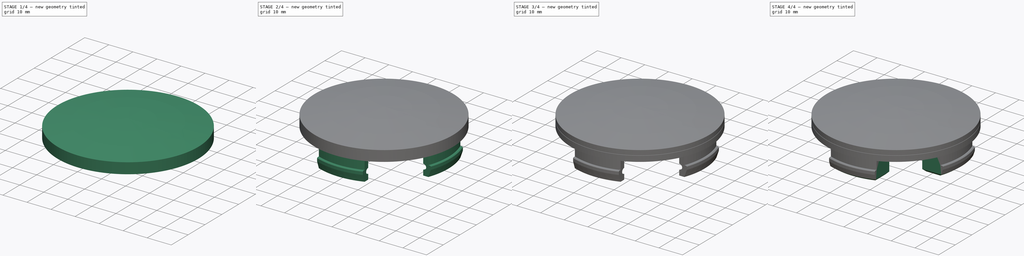
[diagram: build sequence overview — one tinted view per stage of 4, left to right]
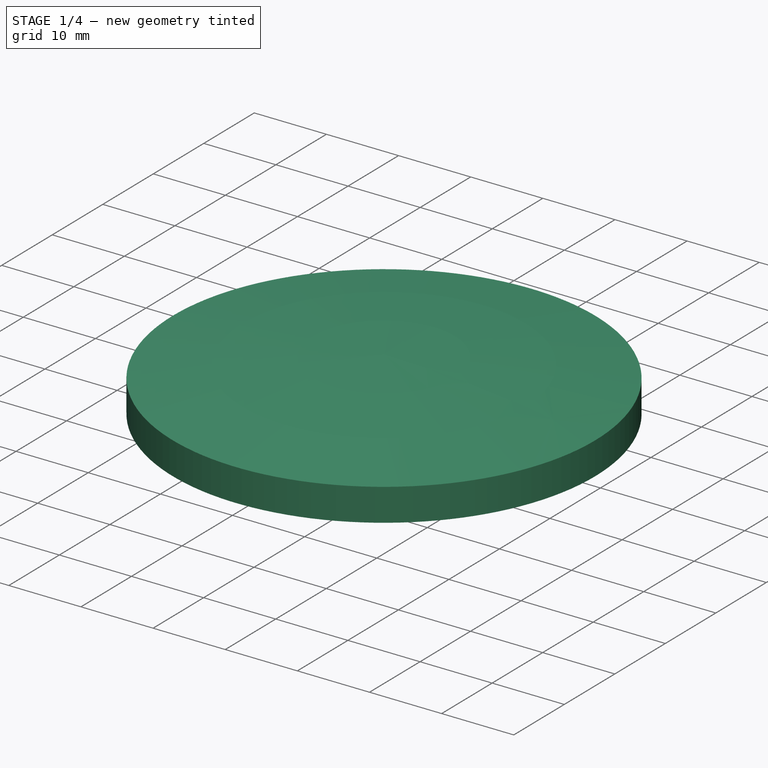
[diagram: stage 1 of 4 — iso view after this stage's code; geometry added in this stage tinted green]
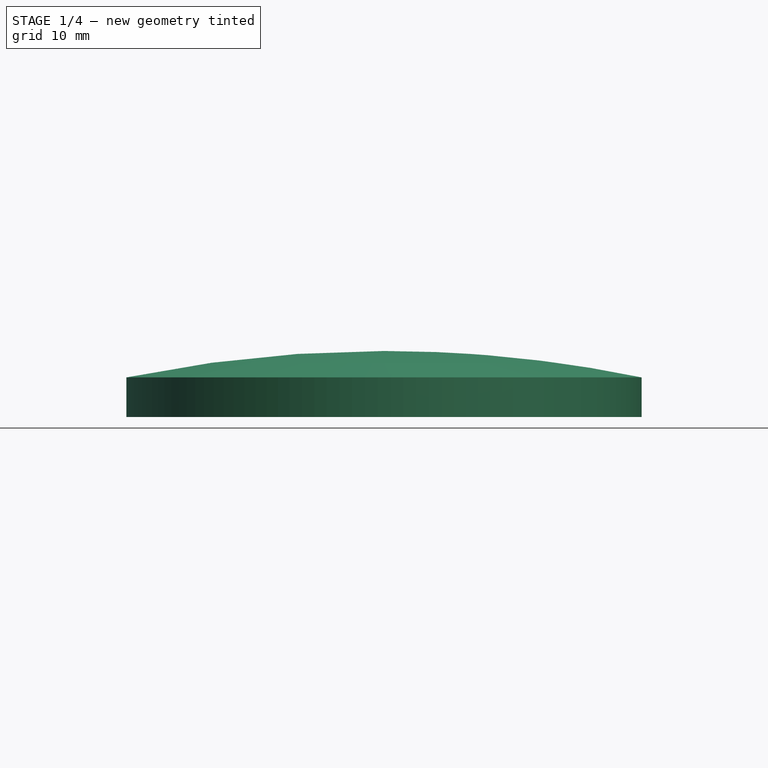
[diagram: stage 1 of 4 — front view after this stage's code; geometry added in this stage tinted green]
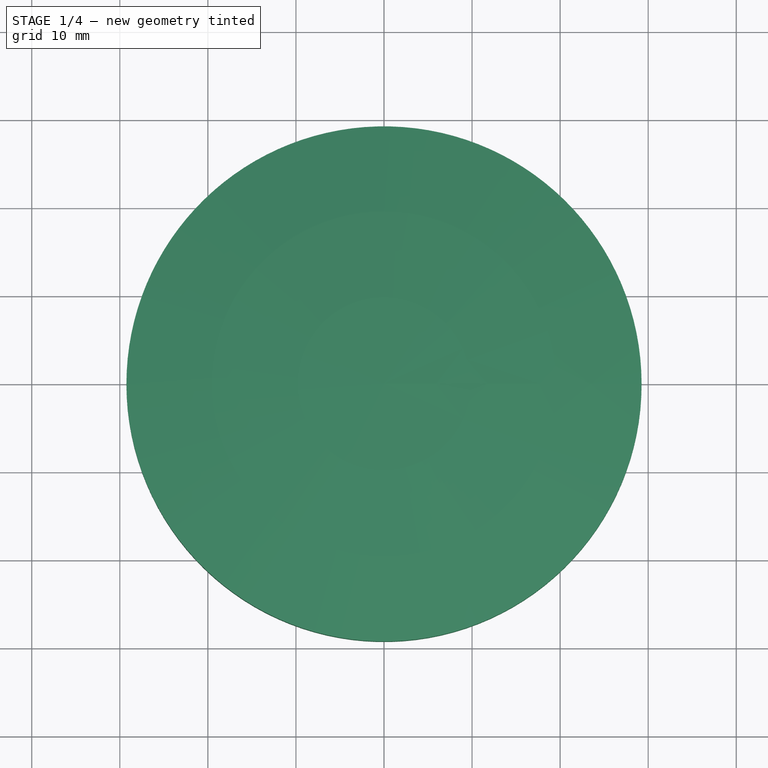
[diagram: stage 1 of 4 — top view after this stage's code; geometry added in this stage tinted green]
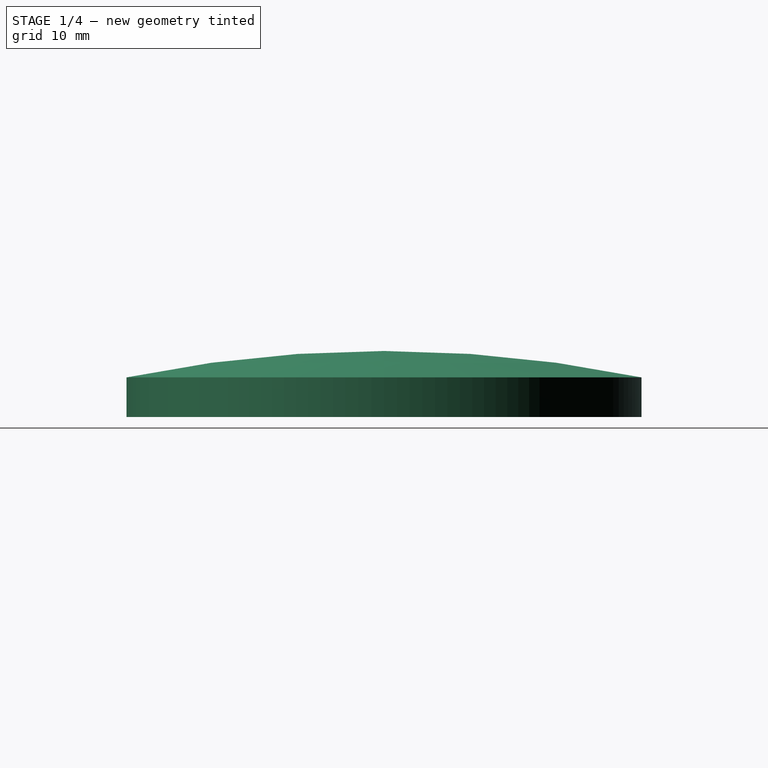
[diagram: stage 1 of 4 — right view after this stage's code; geometry added in this stage tinted green]
FCSTD DOCUMENT  (FreeCAD 1.2R44643 (Git))
Label: CarCoverThing
License: All rights reserved
LicenseURL: https://en.wikipedia.org/wiki/All_rights_reserved
objects: Sketcher::SketchObject×9, PartDesign::Pad×3, PartDesign::Pocket×3, PartDesign::Groove×2, PartDesign::PolarPattern×2, PartDesign::Chamfer×2, App::Point×1, PartDesign::Revolution×1, PartDesign::Mirrored×1, PartDesign::MultiTransform×1, PartDesign::Body×1
note: 60 computed .brp shape members not serialized (recipe doc carries the construction recipe); baked Part::Feature solids carry a one-line shape summary decoded from their .brp

FEATURE [App::Point] Origin001
  Role = Origin
FEATURE [Sketcher::SketchObject] Sketch
  ArcFitTolerance = 1e-06
  AttachmentSupport = -> [Origin]
  ExternalTypes = [0]
  FullyConstrained = true
  MakeInternals = false
  MapMode = 5
  sketch-geometry (1):
    g0: Circle CenterX=0 CenterY=0 CenterZ=0 NormalX=0 NormalY=0 NormalZ=1 AngleXU=0 Radius=29.25
  constraints (2):
    c: Diameter(g0) = 58.5
    c: Coincident(g0,g-1)
FEATURE [PartDesign::Pad] Pad
  Direction = (0,0,1)
  Length = 7.5
  Length2 = 10
  Profile = -> Sketch
  ReferenceAxis = -> Sketch [N_Axis]
  Refine = true
  SideType = 0
  Suppressed = false
  Type = 0
  Type2 = 0
FEATURE [Sketcher::SketchObject] Sketch001
  ArcFitTolerance = 1e-06
  AttachmentSupport = -> [Origin]
  ExternalGeometry = -> [Pad]
  ExternalTypes = [0]
  FullyConstrained = true
  MakeInternals = false
  MapMode = 5
  Placement = pos=(0,0,0) rot=(1,0,0;1.5708rad)
  sketch-geometry (4):
    g0: ArcOfCircle CenterX=0 CenterY=-136.594 CenterZ=0 NormalX=0 NormalY=0 NormalZ=1 AngleXU=0 Radius=144.094 StartAngle=1.36638 EndAngle=1.5708
    g1: LineSegment StartX=8.8e-15 StartY=7.5 StartZ=0 EndX=29.25 EndY=7.5 EndZ=0
    g2: LineSegment StartX=29.25 StartY=7.5 StartZ=0 EndX=29.25 EndY=4.5 EndZ=0
    g3: Circle [constr] CenterX=29.25 CenterY=2.5 CenterZ=0 NormalX=0 NormalY=0 NormalZ=1 AngleXU=0 Radius=0.1
  constraints (11):
    c: PointOnObject(g0,g-2)
    c: DistanceY(g-1,g0) = 4.5
    c: Tangent(g0,g-8) = -1.5708
    c: PointOnObject(g0,g-3)
    c: Tangent(g0,g1) = 1.5708
    c: Coincident(g1,g2)
    c: Coincident(g2,g0)
    c: Vertical(g2)
    c: Diameter(g3) = 0.2
    c: PointOnObject(g3,g-3)
    c: DistanceY(g-7,g3) = 2.5
FEATURE [PartDesign::Groove] Groove
  Angle = 360
  Angle2 = 0
  Axis = (0,2e-16,1)
  Base = (0,0,0)
  BaseFeature = -> Pad
  Profile = -> Sketch001
  ReferenceAxis = -> Sketch001 [V_Axis]
  Refine = true
  Suppressed = false
  Type = 0
FEATURE [Sketcher::SketchObject] Sketch002
  ArcFitTolerance = 1e-06
  AttachmentSupport = -> [Groove]
  ExternalGeometry = -> [Groove]
  ExternalTypes = [0]
  FullyConstrained = true
  MakeInternals = false
  MapMode = 5
  Placement = pos=(0,0,0) rot=(1,0,0;3.14159rad)
  sketch-geometry (1):
    g0: Circle CenterX=0 CenterY=0 CenterZ=0 NormalX=0 NormalY=0 NormalZ=1 AngleXU=0 Radius=25.25
  constraints (3):
    c: Coincident(g0,g-3)
    c: Distance(g0,g-3) = 4
    c: Diameter(g-3) = 58.5
FEATURE [PartDesign::Pocket] Pocket
  BaseFeature = -> Groove
  Direction = (0,0,1)
  Length = 1.35
  Length2 = 5
  Profile = -> Sketch002
  ReferenceAxis = -> Sketch002 [N_Axis]
  Refine = true
  SideType = 0
  Suppressed = false
  Type = 0
  Type2 = 0
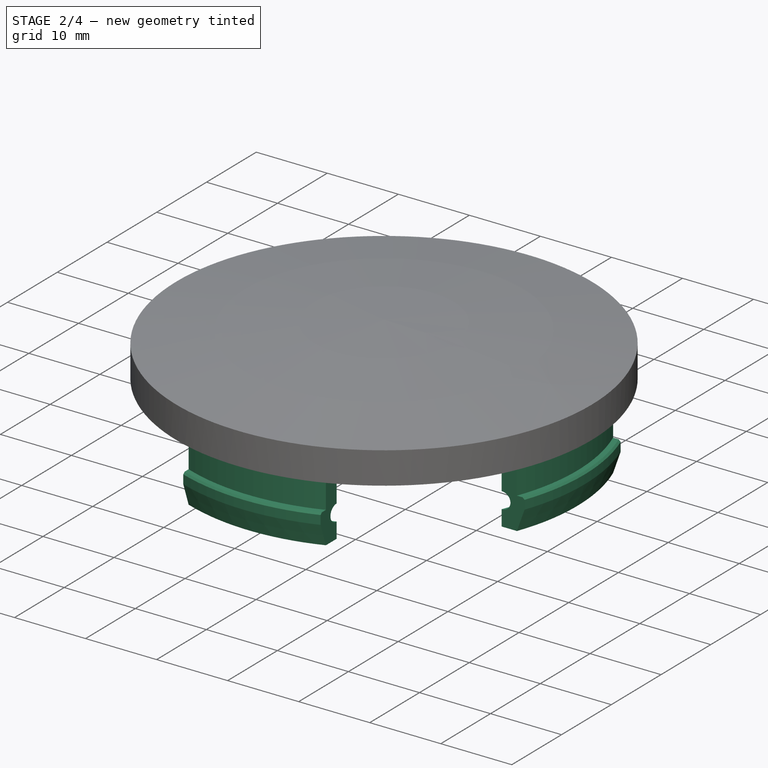
[diagram: stage 2 of 4 — iso view after this stage's code; geometry added in this stage tinted green]
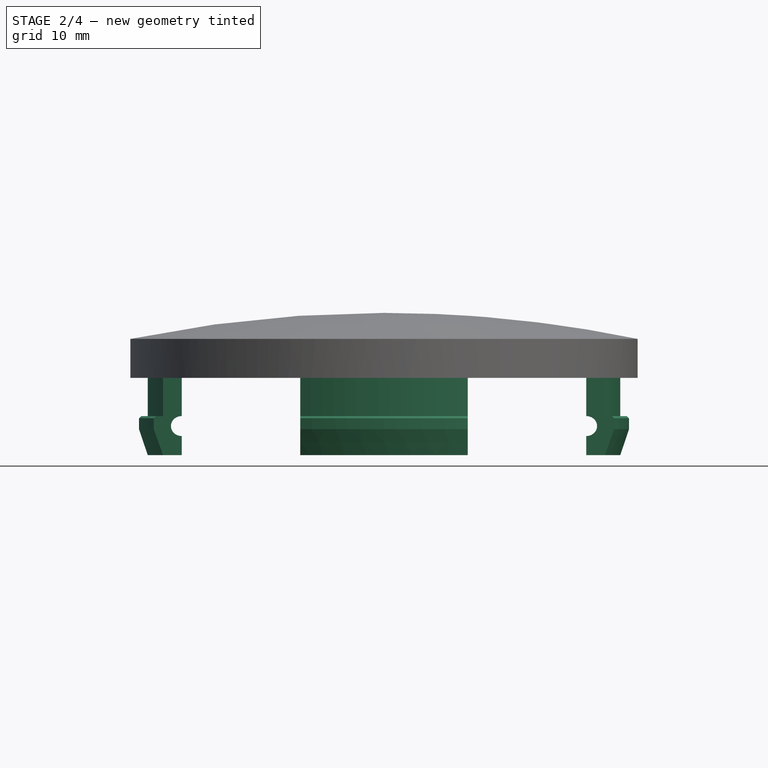
[diagram: stage 2 of 4 — front view after this stage's code; geometry added in this stage tinted green]
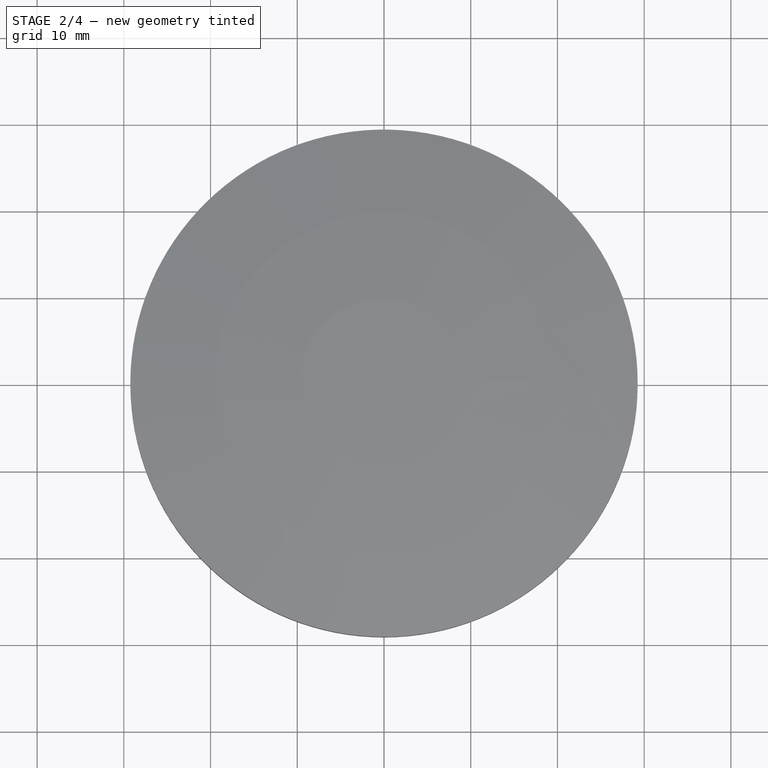
[diagram: stage 2 of 4 — top view after this stage's code; geometry added in this stage tinted green]
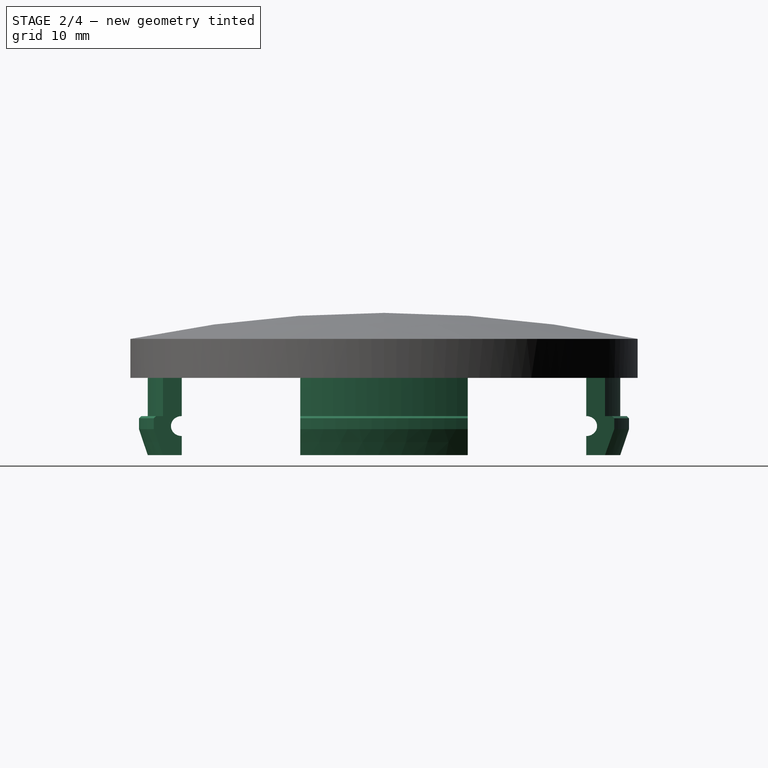
[diagram: stage 2 of 4 — right view after this stage's code; geometry added in this stage tinted green]
FEATURE [Sketcher::SketchObject] Sketch003
  ArcFitTolerance = 1e-06
  AttachmentSupport = -> [Origin]
  ExternalGeometry = -> [Pocket]
  ExternalTypes = [0,0,0]
  FullyConstrained = true
  MakeInternals = false
  MapMode = 5
  Placement = pos=(0,0,0) rot=(1,0,0;1.5708rad)
  sketch-geometry (12):
    g0: LineSegment StartX=27.25 StartY=2.2e-15 StartZ=0 EndX=27.25 EndY=-4.4 EndZ=0
    g1: ArcOfCircle [constr] CenterX=27.25 CenterY=-5.4 CenterZ=0 NormalX=0 NormalY=0 NormalZ=1 AngleXU=0 Radius=1 StartAngle=0 EndAngle=1.5708
    g2: LineSegment StartX=28.25 StartY=-5.9 StartZ=0 EndX=27.25 EndY=-8.9 EndZ=0
    g3: LineSegment StartX=27.25 StartY=-8.9 StartZ=0 EndX=25.25 EndY=-8.9 EndZ=0
    g4: LineSegment StartX=25.25 StartY=-8.9 StartZ=0 EndX=25.25 EndY=-6.7 EndZ=0
    g5: LineSegment StartX=25.25 StartY=-4.4 StartZ=0 EndX=25.25 EndY=0 EndZ=0
    g6: LineSegment StartX=25.25 StartY=0 StartZ=0 EndX=27.25 EndY=2.2e-15 EndZ=0
    g7: ArcOfCircle CenterX=25.25 CenterY=-5.55 CenterZ=0 NormalX=0 NormalY=0 NormalZ=1 AngleXU=0 Radius=1.15 StartAngle=4.71239 EndAngle=7.85398
    g8: LineSegment StartX=28.25 StartY=-5.9 StartZ=0 EndX=28.25 EndY=-5.4 EndZ=0
    g9: LineSegment StartX=28.25 StartY=-5.4 StartZ=0 EndX=28.25 EndY=-4.65 EndZ=0
    g10: LineSegment StartX=28.25 StartY=-4.65 StartZ=0 EndX=28 EndY=-4.4 EndZ=0
    g11: LineSegment StartX=28 StartY=-4.4 StartZ=0 EndX=27.25 EndY=-4.4 EndZ=0
  constraints (38):
    c: PointOnObject(g0,g-7)
    c: Vertical(g0)
    c: Perpendicular(g0,g1) = 4.71239
    c: Coincident(g2,g3)
    c: Horizontal(g3)
    c: Coincident(g3,g4)
    c: Vertical(g4)
    c: Coincident(g5,g-10)
    c: Coincident(g5,g6)
    c: Coincident(g6,g0)
    c: Vertical(g5)
    c: Vertical(g4,g5)
    c: Coincident(g7,g5)
    c: Coincident(g7,g4)
    c: Vertical(g7,g5)
    c: DistanceX(g3,g3) = 2
    c: Vertical(g8)
    c: Distance(g4,g8) = 3
    c: DistanceY(g2,g-7) = 8.9
    c: DistanceY(g2,g0) = 4.5
    c: Tangent(g8,g1) = -1.5708
    c: Coincident(g2,g8)
    c: DistanceY(g2,g2) = 3
    c: Distance(g4,g2) = 2.59307
    c: Distance(g4,g2) = 2.97321
    c: Radius(g7) = 1.15
    c: DistanceY(g4,g4) = 2.2
    c: DistanceX(g6,g6) = 2
    c: Distance(g0,g8) = 1
    c: Distance(g5,g8) = 3
    c: Coincident(g1,g9)
    c: Coincident(g9,g10)
    c: Coincident(g10,g11)
    c: Coincident(g11,g0)
    c: Horizontal(g11)
    c: Equal(g9,g11)
    c: DistanceX(g11,g11) = 0.75
    c: Vertical(g9)
FEATURE [PartDesign::Revolution] Revolution
  Angle = 22.5
  Angle2 = 22.5
  Axis = (0,2e-16,1)
  Base = (0,0,0)
  BaseFeature = -> Pocket
  Profile = -> Sketch003
  ReferenceAxis = -> Sketch003 [V_Axis]
  Refine = true
  Reversed = true
  Suppressed = false
  Type = 4
FEATURE [Sketcher::SketchObject] Sketch004
  ArcFitTolerance = 1e-06
  AttachmentSupport = -> [Revolution]
  ExternalGeometry = -> [Revolution]
  ExternalTypes = [0]
  FullyConstrained = true
  MakeInternals = false
  MapMode = 5
  Placement = pos=(0,-2e-15,-8.9) rot=(1,0,0;3.14159rad)
  sketch-geometry (8):
    g0: LineSegment StartX=23.328 StartY=9.66276 StartZ=0 EndX=28.328 EndY=9.66276 EndZ=0
    g1: LineSegment StartX=28.328 StartY=9.66276 StartZ=0 EndX=28.328 EndY=14.6628 EndZ=0
    g2: LineSegment StartX=28.328 StartY=14.6628 StartZ=0 EndX=23.328 EndY=14.6628 EndZ=0
    g3: LineSegment StartX=23.328 StartY=14.6628 StartZ=0 EndX=23.328 EndY=9.66276 EndZ=0
    g4: LineSegment StartX=23.328 StartY=-9.66276 StartZ=0 EndX=23.328 EndY=-14.6628 EndZ=0
    g5: LineSegment StartX=23.328 StartY=-14.6628 StartZ=0 EndX=28.328 EndY=-14.6628 EndZ=0
    g6: LineSegment StartX=28.328 StartY=-14.6628 StartZ=0 EndX=28.328 EndY=-9.66276 EndZ=0
    g7: LineSegment StartX=28.328 StartY=-9.66276 StartZ=0 EndX=23.328 EndY=-9.66276 EndZ=0
  constraints (22):
    c: Coincident(g0,g1)
    c: Coincident(g1,g2)
    c: Coincident(g2,g3)
    c: Coincident(g3,g0)
    c: Horizontal(g0)
    c: Horizontal(g2)
    c: Vertical(g1)
    c: Vertical(g3)
    c: Coincident(g0,g-6)
    c: Coincident(g4,g5)
    c: Coincident(g5,g6)
    c: Coincident(g6,g7)
    c: Coincident(g7,g4)
    c: Vertical(g4)
    c: Vertical(g6)
    c: Horizontal(g5)
    c: Horizontal(g7)
    c: Coincident(g4,g-5)
    c: Equal(g7,g0)
    c: Equal(g6,g1)
    c: Equal(g1,g0)
    c: DistanceY(g1,g1) = 5
FEATURE [PartDesign::Pocket] Pocket001
  BaseFeature = -> Revolution
  Direction = (0,0,1)
  Length = 5
  Length2 = 5
  Profile = -> Sketch004
  ReferenceAxis = -> Sketch004 [N_Axis]
  Refine = true
  SideType = 0
  Suppressed = false
  Type = 3
  Type2 = 0
  UpToFace = -> Revolution [Face11]
FEATURE [PartDesign::PolarPattern] PolarPattern
  Angle = 360
  Axis = -> Sketch003 [V_Axis]
  BaseFeature = -> Pocket001
  Mode = 0
  Occurrences = 4
  Offset = 120
  Originals = -> [Revolution,Pocket001]
  Refine = true
  SpacingPattern = [0]
  Spacings = [-1,-1,-1]
  Suppressed = false
  TransformMode = 0
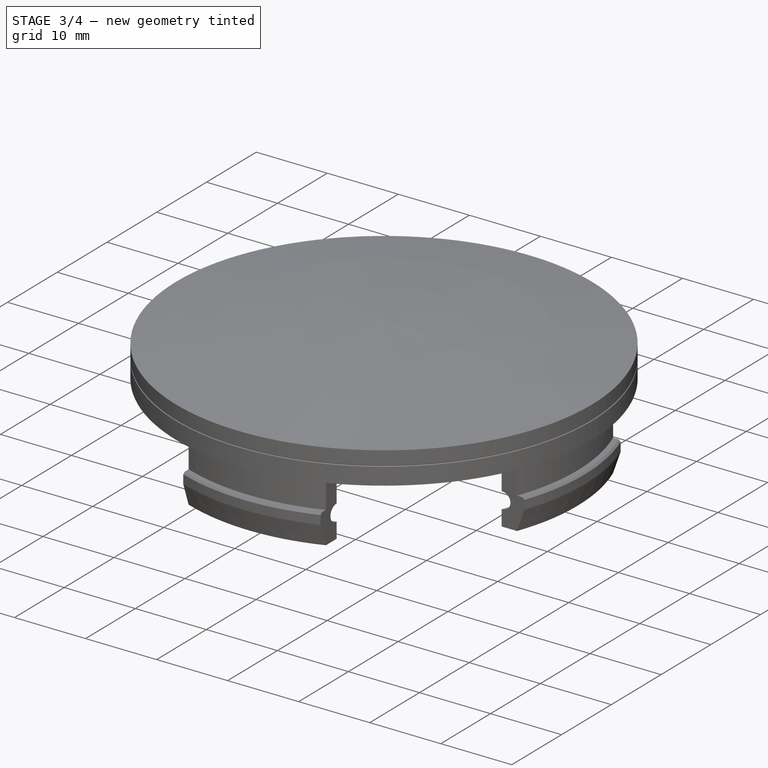
[diagram: stage 3 of 4 — iso view after this stage's code; geometry added in this stage tinted green]
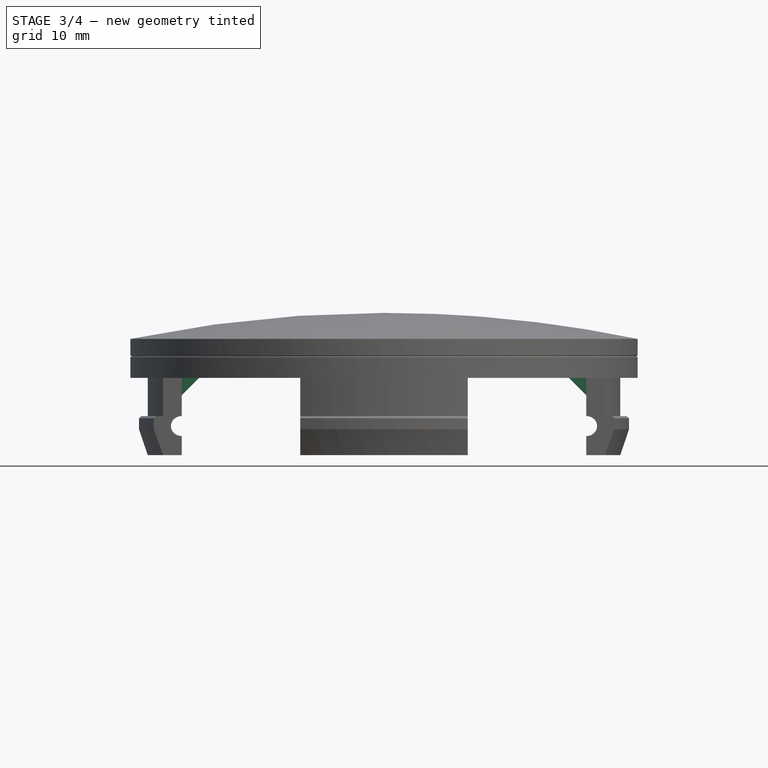
[diagram: stage 3 of 4 — front view after this stage's code; geometry added in this stage tinted green]
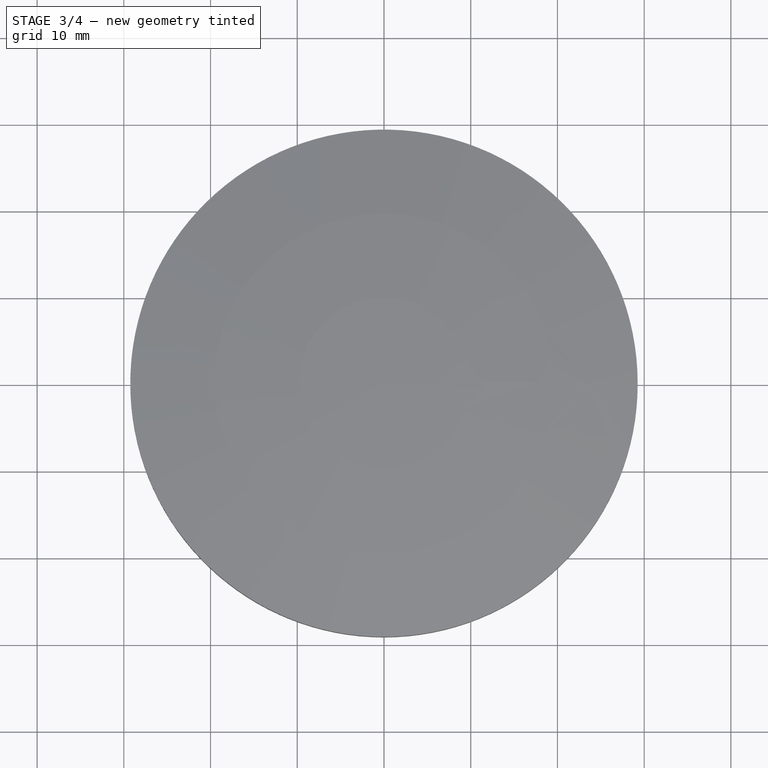
[diagram: stage 3 of 4 — top view after this stage's code; geometry added in this stage tinted green]
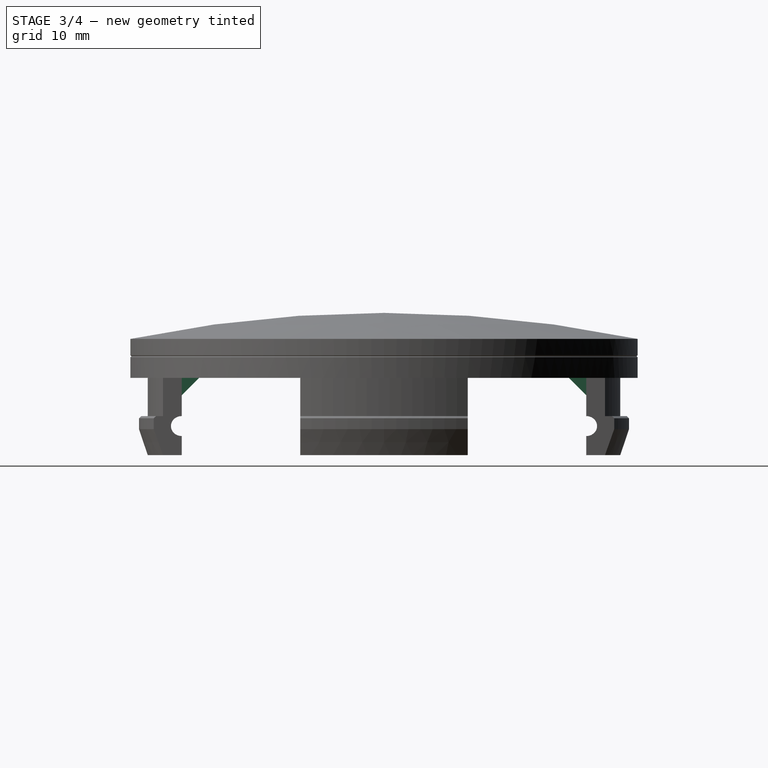
[diagram: stage 3 of 4 — right view after this stage's code; geometry added in this stage tinted green]
FEATURE [Sketcher::SketchObject] Sketch005
  ArcFitTolerance = 1e-06
  AttachmentSupport = -> [PolarPattern]
  ExternalGeometry = -> [PolarPattern]
  ExternalTypes = [0,0]
  FullyConstrained = true
  MakeInternals = false
  MapMode = 5
  Placement = pos=(0,0,1.35) rot=(1,0,0;3.14159rad)
  sketch-geometry (6):
    g0: ArcOfCircle CenterX=0 CenterY=2e-15 CenterZ=0 NormalX=0 NormalY=0 NormalZ=1 AngleXU=0 Radius=25.25 StartAngle=0.275965 EndAngle=0.348813
    g1: LineSegment StartX=23.7294 StartY=8.63 StartZ=0 EndX=20.9294 EndY=8.63 EndZ=0
    g2: LineSegment StartX=20.9294 StartY=8.63 StartZ=0 EndX=20.9294 EndY=6.88 EndZ=0
    g3: LineSegment StartX=20.9294 StartY=6.88 StartZ=0 EndX=24.2946 EndY=6.88 EndZ=0
    g4: GeomPoint X=28.4294 Y=6.88 Z=0
    g5: GeomPoint X=25.25 Y=0 Z=0
  constraints (18):
    c: Coincident(g0,g-3)
    c: PointOnObject(g0,g-3)
    c: Distance(g0,g-1) = 6.88
    c: DistanceY(g0,g0) = 1.75
    c: Coincident(g0,g1)
    c: Horizontal(g1)
    c: Coincident(g1,g2)
    c: Vertical(g2)
    c: Coincident(g2,g3)
    c: Coincident(g3,g0)
    c: Horizontal(g3)
    c: PointOnObject(g4,g-4)
    c: Horizontal(g4,g0)
    c: DistanceX(g2,g4) = 7.5
    c: DistanceX(g3,g3) = 3.36526
    c: PointOnObject(g5,g-3)
    c: PointOnObject(g5,g-1)
    c: DistanceX(g2,g5) = 4.32065
FEATURE [PartDesign::Pad] Pad001
  BaseFeature = -> PolarPattern
  Direction = (0,0,-1)
  Length = 4.3
  Length2 = 10
  Profile = -> Sketch005
  ReferenceAxis = -> Sketch005 [N_Axis]
  Refine = true
  SideType = 0
  Suppressed = false
  Type = 0
  Type2 = 0
FEATURE [PartDesign::Chamfer] Chamfer
  Angle = 45
  Base = -> Pad001 [Edge133]
  BaseFeature = -> Pad001
  ChamferType = 0
  FlipDirection = false
  Refine = true
  Size = 3.35
  Size2 = 1
  SupportTransform = false
  Suppressed = false
  UseAllEdges = false
FEATURE [PartDesign::Mirrored] Mirror
  MirrorPlane = -> Sketch005 [H_Axis]
  Refine = true
  Suppressed = false
  TransformMode = 0
FEATURE [PartDesign::PolarPattern] Polar_Pattern
  Angle = 360
  Axis = -> Sketch005 [N_Axis]
  Mode = 0
  Occurrences = 4
  Offset = 120
  Refine = true
  SpacingPattern = [0]
  Spacings = [-1,-1,-1]
  Suppressed = false
  TransformMode = 0
FEATURE [PartDesign::MultiTransform] MultiTransform
  BaseFeature = -> Chamfer
  Originals = -> [Pad001,Chamfer]
  Refine = true
  Suppressed = false
  TransformMode = 0
  Transformations = -> [Mirror,Polar_Pattern]
FEATURE [Sketcher::SketchObject] Sketch006
  ArcFitTolerance = 1e-06
  AttachmentSupport = -> [Origin]
  ExternalGeometry = -> [MultiTransform]
  ExternalTypes = [0]
  FullyConstrained = true
  MakeInternals = false
  MapMode = 5
  Placement = pos=(0,0,0) rot=(0.57735,0.57735,0.57735;2.0944rad)
  sketch-geometry (1):
    g0: Circle CenterX=29.25 CenterY=2.5 CenterZ=0 NormalX=0 NormalY=0 NormalZ=1 AngleXU=0 Radius=0.1
  constraints (3):
    c: Diameter(g0) = 0.2
    c: PointOnObject(g0,g-16)
    c: DistanceY(g-17,g0) = 2.5
FEATURE [PartDesign::Groove] Groove001
  Angle = 360
  Angle2 = 0
  Axis = (0,0,1)
  Base = (0,0,0)
  BaseFeature = -> MultiTransform
  Profile = -> Sketch006
  ReferenceAxis = -> Sketch006 [V_Axis]
  Refine = true
  Suppressed = false
  Type = 0
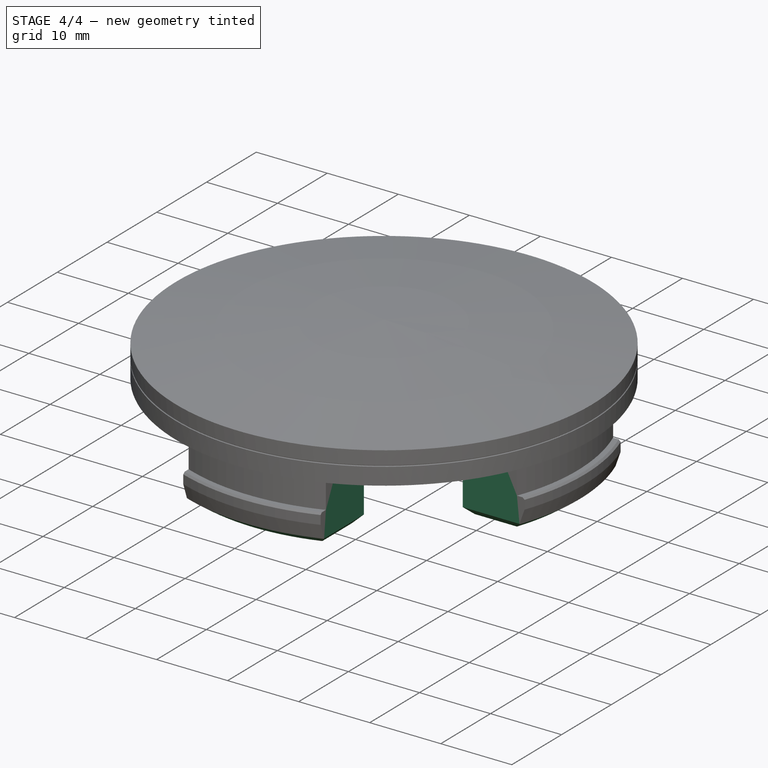
[diagram: stage 4 of 4 — iso view after this stage's code; geometry added in this stage tinted green]
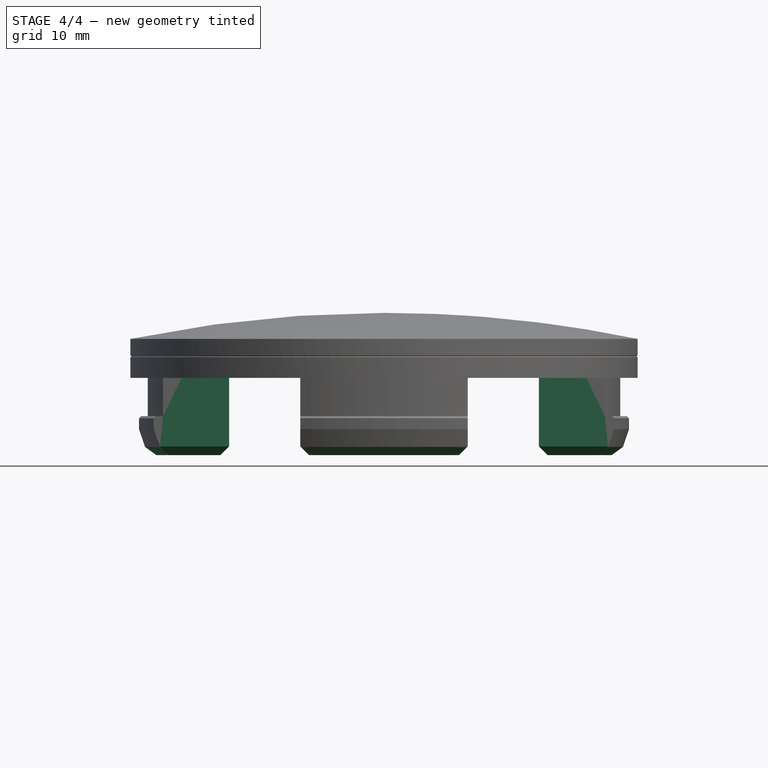
[diagram: stage 4 of 4 — front view after this stage's code; geometry added in this stage tinted green]
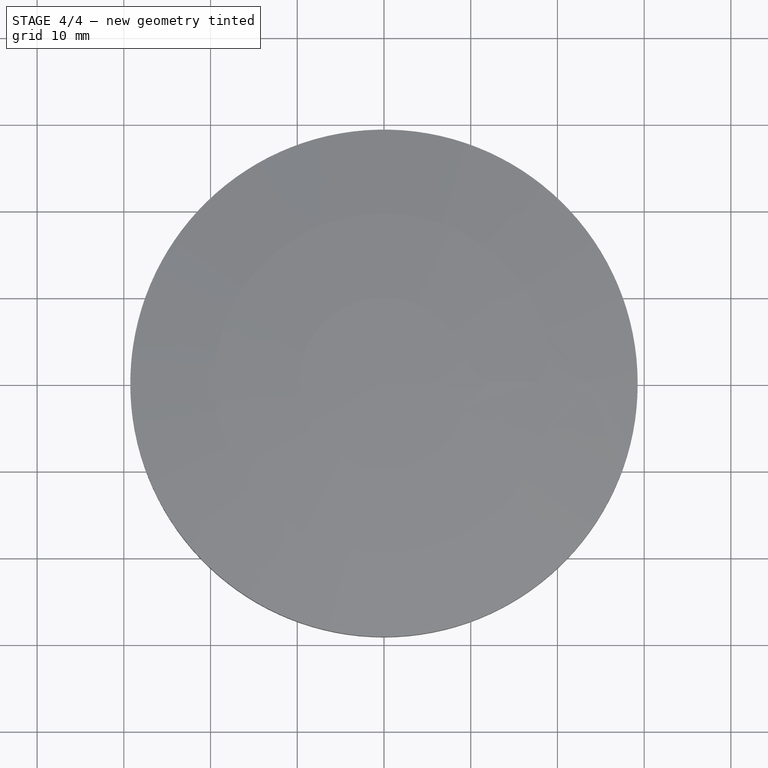
[diagram: stage 4 of 4 — top view after this stage's code; geometry added in this stage tinted green]
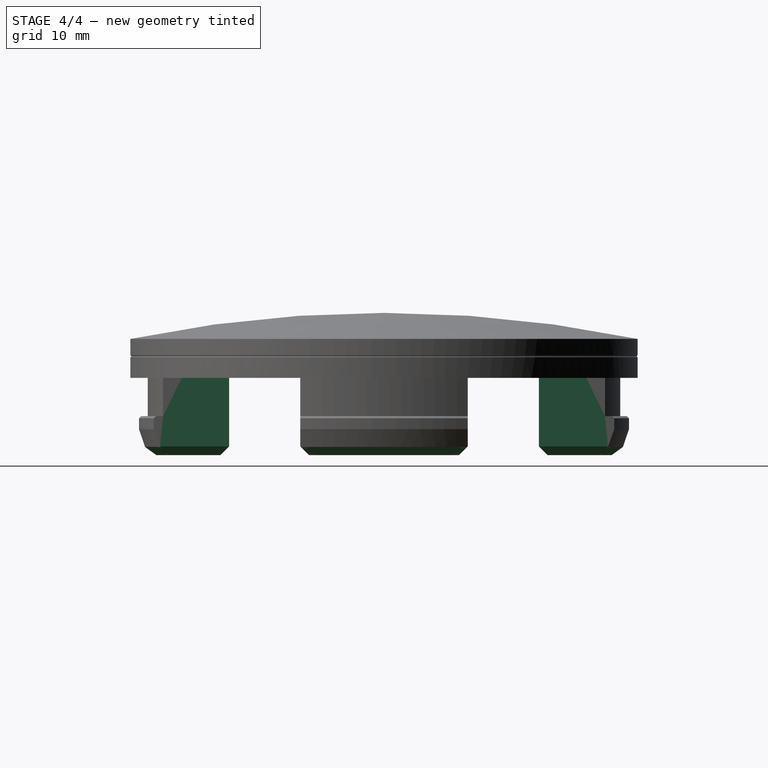
[diagram: stage 4 of 4 — right view after this stage's code; geometry added in this stage tinted green]
FEATURE [Sketcher::SketchObject] Sketch007
  ArcFitTolerance = 1e-06
  AttachmentSupport = -> [Groove001]
  ExternalGeometry = -> [Groove001]
  ExternalTypes = [0,0,0,0]
  FullyConstrained = true
  MakeInternals = false
  MapMode = 5
  Placement = pos=(0,0,1.35) rot=(1,0,0;3.14159rad)
  sketch-geometry (8):
    g0: LineSegment StartX=-24.5681 StartY=-9.66276 StartZ=0 EndX=-9.66276 EndY=-9.66276 EndZ=0
    g1: LineSegment StartX=-9.66276 StartY=-9.66276 StartZ=0 EndX=-9.66276 EndY=-24.5681 EndZ=0
    g2: LineSegment StartX=9.66276 StartY=-24.5681 StartZ=0 EndX=9.66276 EndY=-9.66276 EndZ=0
    g3: LineSegment StartX=9.66276 StartY=-9.66276 StartZ=0 EndX=24.5681 EndY=-9.66276 EndZ=0
    g4: LineSegment StartX=24.5681 StartY=9.66276 StartZ=0 EndX=9.66276 EndY=9.66276 EndZ=0
    g5: LineSegment StartX=9.66276 StartY=9.66276 StartZ=0 EndX=9.66276 EndY=24.5681 EndZ=0
    g6: LineSegment StartX=-9.66276 StartY=24.5681 StartZ=0 EndX=-9.66276 EndY=9.66276 EndZ=0
    g7: LineSegment StartX=-9.66276 StartY=9.66276 StartZ=0 EndX=-24.5681 EndY=9.66276 EndZ=0
  constraints (20):
    c: Coincident(g0,g1)
    c: Vertical(g1)
    c: Vertical(g2)
    c: Coincident(g2,g3)
    c: Horizontal(g3)
    c: Horizontal(g4)
    c: Coincident(g4,g5)
    c: Vertical(g6)
    c: Coincident(g6,g7)
    c: Horizontal(g7)
    c: Horizontal(g0)
    c: Vertical(g5)
    c: Coincident(g6,g-13)
    c: Coincident(g5,g-13)
    c: Coincident(g-20,g4)
    c: Coincident(g3,g-20)
    c: Coincident(g-27,g2)
    c: Coincident(g-27,g1)
    c: Coincident(g-6,g0)
    c: Coincident(g7,g-6)
FEATURE [PartDesign::Pad] Pad002
  BaseFeature = -> Groove001
  Direction = (0,0,-1)
  Length = 10
  Length2 = 10
  Profile = -> Sketch007
  ReferenceAxis = -> Sketch007 [N_Axis]
  Refine = true
  SideType = 0
  Suppressed = false
  Type = 3
  Type2 = 0
  UpToFace = -> Groove001 [Face60]
FEATURE [Sketcher::SketchObject] Sketch008
  ArcFitTolerance = 1e-06
  AttachmentSupport = -> [Pad002]
  ExternalGeometry = -> [Pad002]
  ExternalTypes = [0,0]
  FullyConstrained = true
  MakeInternals = false
  MapMode = 5
  Placement = pos=(0,0,-8.9) rot=(1,0,0;3.14159rad)
  sketch-geometry (5):
    g0: LineSegment StartX=-17.8544 StartY=-17.8544 StartZ=0 EndX=17.8544 EndY=-17.8544 EndZ=0
    g1: LineSegment StartX=17.8544 StartY=-17.8544 StartZ=0 EndX=17.8544 EndY=17.8544 EndZ=0
    g2: LineSegment StartX=17.8544 StartY=17.8544 StartZ=0 EndX=-17.8544 EndY=17.8544 EndZ=0
    g3: LineSegment StartX=-17.8544 StartY=17.8544 StartZ=0 EndX=-17.8544 EndY=-17.8544 EndZ=0
    g4: GeomPoint [constr] X=0 Y=0 Z=0
  constraints (12):
    c: Coincident(g0,g1)
    c: Coincident(g1,g2)
    c: Coincident(g2,g3)
    c: Coincident(g3,g0)
    c: Horizontal(g0)
    c: Horizontal(g2)
    c: Vertical(g1)
    c: Vertical(g3)
    c: Symmetric(g2,g0,g4)
    c: Coincident(g4,g-15)
    c: PointOnObject(g1,g-15)
    c: Equal(g2,g1)
FEATURE [PartDesign::Pocket] Pocket002
  BaseFeature = -> Pad002
  Direction = (0,0,1)
  Length = 5
  Length2 = 5
  Profile = -> Sketch008
  ReferenceAxis = -> Sketch008 [N_Axis]
  Refine = true
  SideType = 0
  Suppressed = false
  Type = 3
  Type2 = 0
  UpToFace = -> Pad002 [Face22]
FEATURE [PartDesign::Chamfer] Chamfer001
  Angle = 45
  Base = -> Pocket002 [Face32,Face26,Face20,Face38]
  BaseFeature = -> Pocket002
  ChamferType = 0
  FlipDirection = false
  Refine = true
  Size = 1
  Size2 = 1
  SupportTransform = false
  Suppressed = false
  UseAllEdges = false
FEATURE [PartDesign::Body] Body
  AllowCompound = false
  Group = -> [Sketch,Pad,Sketch001,Groove,Sketch002,Pocket,Sketch003,Revolution,Sketch004,Pocket001,PolarPattern,Sketch005,Pad001,Chamfer,MultiTransform,Mirror,Polar_Pattern,Sketch006,Groove001,Sketch007,Pad002,Sketch008,Pocket002,Chamfer001]
  Origin = -> Origin
  Tip = -> Chamfer001
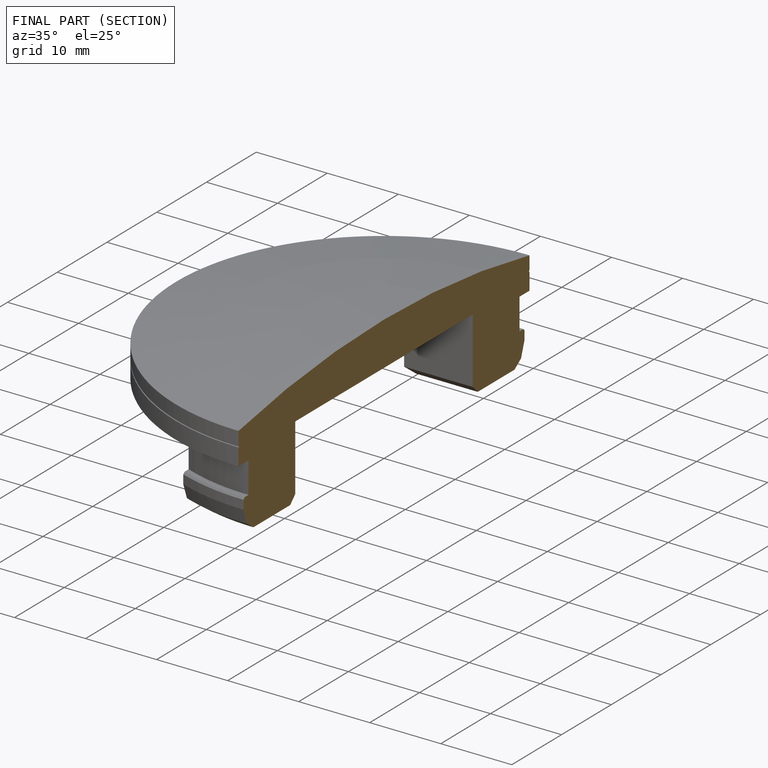
[diagram: finished part — half-section view (interior)]
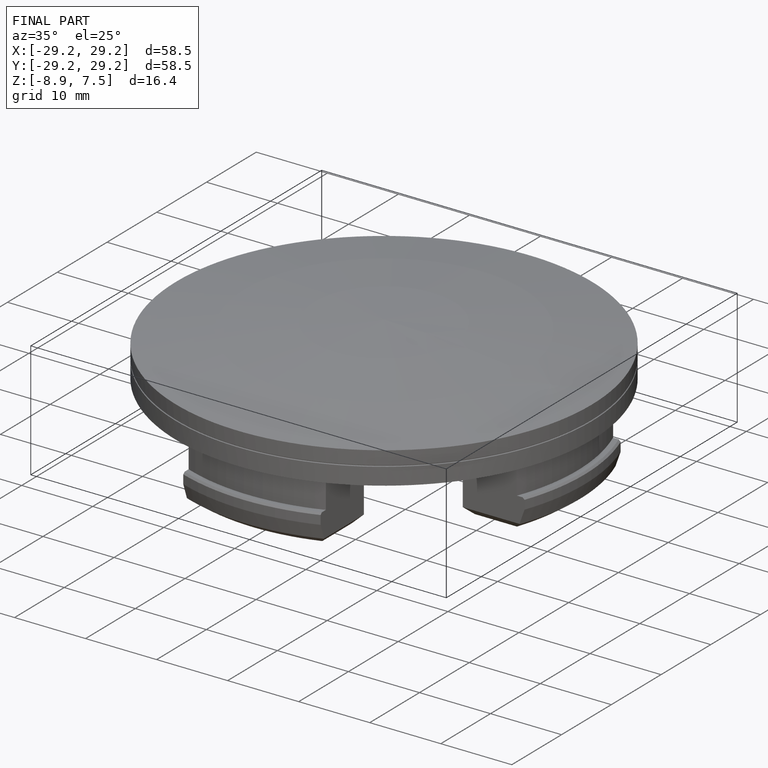
[diagram: finished part — iso view with bounding-box wireframe]
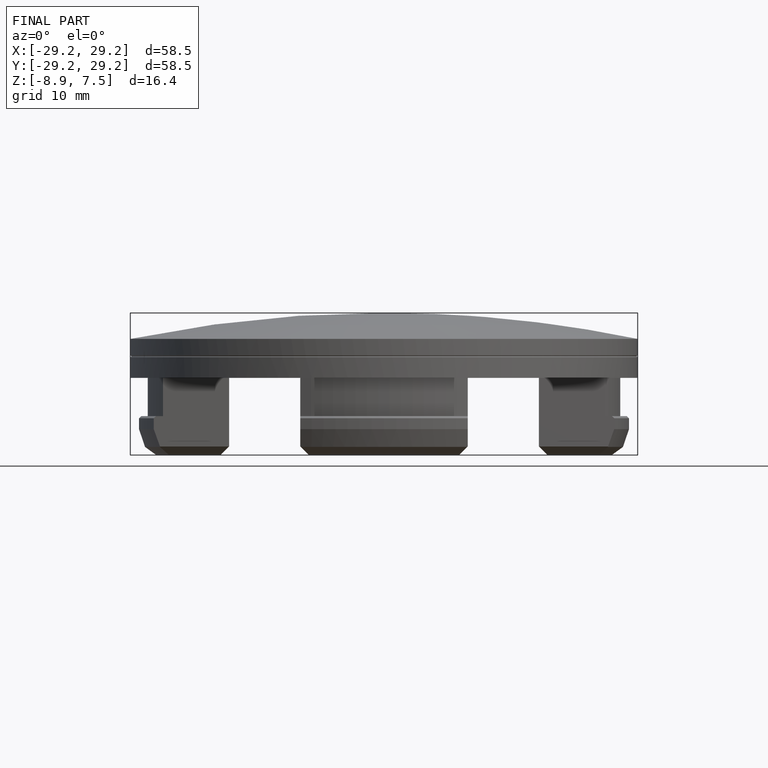
[diagram: finished part — front view with bounding-box wireframe]
